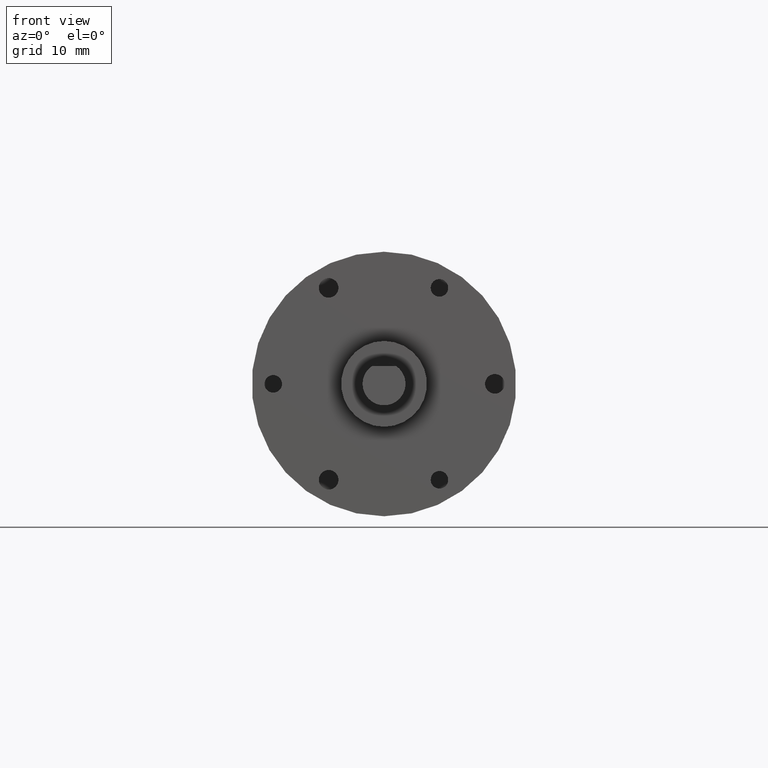
[diagram: clean part render]
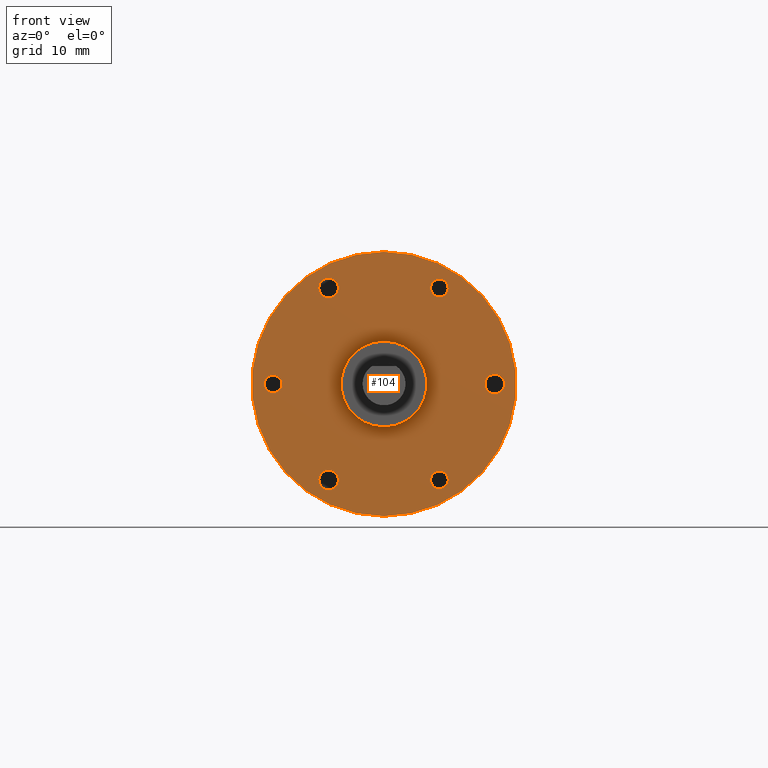
[diagram: same view with one face highlighted and labeled with its STEP entity id]
A machine part, front view. The second image highlights one B-rep face of the part: STEP entity #104.
In plain terms, the highlighted planar face has unit normal (0, 1, -0).
Its self-contained STEP definition (entity closure, byte-faithful):
#104 = ADVANCED_FACE( '', ( #229, #230, #231, #232, #233, #234, #235, #236 ), #237, .F. );
#229 = FACE_BOUND( '', #376, .T. );
#230 = FACE_BOUND( '', #377, .T. );
#231 = FACE_BOUND( '', #378, .T. );
#232 = FACE_BOUND( '', #379, .T. );
#233 = FACE_BOUND( '', #380, .T. );
#234 = FACE_BOUND( '', #381, .T. );
#235 = FACE_OUTER_BOUND( '', #382, .T. );
#236 = FACE_BOUND( '', #383, .T. );
#237 = PLANE( '', #384 );
#376 = EDGE_LOOP( '', ( #577 ) );
#377 = EDGE_LOOP( '', ( #578 ) );
#378 = EDGE_LOOP( '', ( #579 ) );
#379 = EDGE_LOOP( '', ( #580 ) );
#380 = EDGE_LOOP( '', ( #581 ) );
#381 = EDGE_LOOP( '', ( #582 ) );
#382 = EDGE_LOOP( '', ( #583 ) );
#383 = EDGE_LOOP( '', ( #584 ) );
#384 = AXIS2_PLACEMENT_3D( '', #585, #586, #587 );
#577 = ORIENTED_EDGE( '', *, *, #741, .T. );
#578 = ORIENTED_EDGE( '', *, *, #761, .T. );
#579 = ORIENTED_EDGE( '', *, *, #762, .T. );
#580 = ORIENTED_EDGE( '', *, *, #763, .T. );
#581 = ORIENTED_EDGE( '', *, *, #747, .T. );
#582 = ORIENTED_EDGE( '', *, *, #729, .T. );
#583 = ORIENTED_EDGE( '', *, *, #764, .F. );
#584 = ORIENTED_EDGE( '', *, *, #757, .T. );
#585 = CARTESIAN_POINT( '', ( 0.000000000000000, -7.30514406091232E-018, -18.5000000000000 ) );
#586 = DIRECTION( '', ( 0.000000000000000, 1.00000000000000, -1.16882304974597E-018 ) );
#587 = DIRECTION( '', ( 0.000000000000000, 1.16882304974597E-018, 1.00000000000000 ) );
#729 = EDGE_CURVE( '', #838, #838, #839, .T. );
#741 = EDGE_CURVE( '', #857, #857, #858, .T. );
#747 = EDGE_CURVE( '', #866, #866, #867, .T. );
#757 = EDGE_CURVE( '', #880, #880, #881, .T. );
#761 = EDGE_CURVE( '', #886, #886, #887, .T. );
#762 = EDGE_CURVE( '', #888, #888, #889, .T. );
#763 = EDGE_CURVE( '', #890, #890, #891, .T. );
#764 = EDGE_CURVE( '', #892, #892, #893, .T. );
#838 = VERTEX_POINT( '', #987 );
#839 = CIRCLE( '', #988, 1.22950000000000 );
#857 = VERTEX_POINT( '', #1009 );
#858 = CIRCLE( '', #1010, 1.37000000000000 );
#866 = VERTEX_POINT( '', #1018 );
#867 = CIRCLE( '', #1019, 1.37000000000000 );
#880 = VERTEX_POINT( '', #1034 );
#881 = CIRCLE( '', #1035, 6.00000000000000 );
#886 = VERTEX_POINT( '', #1040 );
#887 = CIRCLE( '', #1041, 1.22950000000000 );
#888 = VERTEX_POINT( '', #1042 );
#889 = CIRCLE( '', #1043, 1.37000000000000 );
#890 = VERTEX_POINT( '', #1044 );
#891 = CIRCLE( '', #1045, 1.22950000000000 );
#892 = VERTEX_POINT( '', #1046 );
#893 = CIRCLE( '', #1047, 18.5000000000000 );
#987 = CARTESIAN_POINT( '', ( -15.5000000000000, 1.54629445366143E-017, 1.22950000000000 ) );
#988 = AXIS2_PLACEMENT_3D( '', #1125, #1126, #1127 );
#1009 = CARTESIAN_POINT( '', ( -8.43500000000000, 1.52660498955950E-020, -12.2369389554741 ) );
#1010 = AXIS2_PLACEMENT_3D( '', #1143, #1144, #1145 );
#1018 = CARTESIAN_POINT( '', ( -6.38000000000000, 3.00076543903247E-017, 13.4233937586588 ) );
#1019 = AXIS2_PLACEMENT_3D( '', #1152, #1153, #1154 );
#1034 = CARTESIAN_POINT( '', ( 0.000000000000000, 7.01293829847582E-018, 6.00000000000000 ) );
#1035 = AXIS2_PLACEMENT_3D( '', #1163, #1164, #1165 );
#1040 = CARTESIAN_POINT( '', ( 6.68522176604703, -2.38222940381629E-018, -14.0381437586588 ) );
#1041 = AXIS2_PLACEMENT_3D( '', #1169, #1170, #1171 );
#1042 = CARTESIAN_POINT( '', ( 14.8150000000000, 1.29313266379441E-017, -1.18645480318467 ) );
#1043 = AXIS2_PLACEMENT_3D( '', #1172, #1173, #1174 );
#1044 = CARTESIAN_POINT( '', ( 8.81477823395297, 2.89969146580570E-017, 12.8086437586588 ) );
#1045 = AXIS2_PLACEMENT_3D( '', #1175, #1176, #1177 );
#1046 = CARTESIAN_POINT( '', ( 0.000000000000000, 2.16232264203004E-017, 18.5000000000000 ) );
#1047 = AXIS2_PLACEMENT_3D( '', #1178, #1179, #1180 );
#1125 = CARTESIAN_POINT( '', ( -15.5000000000000, 1.40258765969517E-017, 4.33680868994202E-016 ) );
#1126 = DIRECTION( '', ( 0.000000000000000, 1.00000000000000, -1.16882304974597E-018 ) );
#1127 = DIRECTION( '', ( 0.000000000000000, 1.16882304974597E-018, 1.00000000000000 ) );
#1143 = CARTESIAN_POINT( '', ( -7.75000000000000, -1.37148967154848E-018, -13.4233937586588 ) );
#1144 = DIRECTION( '', ( 0.000000000000000, 1.00000000000000, -1.16882304974597E-018 ) );
#1145 = DIRECTION( '', ( -0.500000000000000, 1.01223045360881E-018, 0.866025403784438 ) );
#1152 = CARTESIAN_POINT( '', ( -7.75000000000000, 3.00076543903247E-017, 13.4233937586588 ) );
#1153 = DIRECTION( '', ( 0.000000000000000, 1.00000000000000, -1.16882304974597E-018 ) );
#1154 = DIRECTION( '', ( 1.00000000000000, 0.000000000000000, 0.000000000000000 ) );
#1163 = CARTESIAN_POINT( '', ( 0.000000000000000, 0.000000000000000, 1.92592994438724E-031 ) );
#1164 = DIRECTION( '', ( 0.000000000000000, 1.00000000000000, -1.16882304974597E-018 ) );
#1165 = DIRECTION( '', ( 0.000000000000000, 1.16882304974597E-018, 1.00000000000000 ) );
#1169 = CARTESIAN_POINT( '', ( 7.75000000000000, -1.66369543398495E-018, -13.4233937586588 ) );
#1170 = DIRECTION( '', ( -3.82212313377320E-034, 1.00000000000000, -1.16882304974597E-018 ) );
#1171 = DIRECTION( '', ( -0.866025403784438, -5.84411524872987E-019, -0.500000000000000 ) );
#1172 = CARTESIAN_POINT( '', ( 15.5000000000000, 1.43180823593882E-017, 1.60461921527854E-014 ) );
#1173 = DIRECTION( '', ( 0.000000000000000, 1.00000000000000, -1.16882304974597E-018 ) );
#1174 = DIRECTION( '', ( -0.500000000000000, -1.01223045360881E-018, -0.866025403784439 ) );
#1175 = CARTESIAN_POINT( '', ( 7.75000000000000, 2.97154486278883E-017, 13.4233937586588 ) );
#1176 = DIRECTION( '', ( 2.54808208918213E-034, 1.00000000000000, -1.16882304974597E-018 ) );
#1177 = DIRECTION( '', ( 0.866025403784439, -5.84411524872985E-019, -0.500000000000000 ) );
#1178 = CARTESIAN_POINT( '', ( 0.000000000000000, 0.000000000000000, 1.92592994438724E-031 ) );
#1179 = DIRECTION( '', ( 0.000000000000000, 1.00000000000000, -1.16882304974597E-018 ) );
#1180 = DIRECTION( '', ( 0.000000000000000, 1.16882304974597E-018, 1.00000000000000 ) );